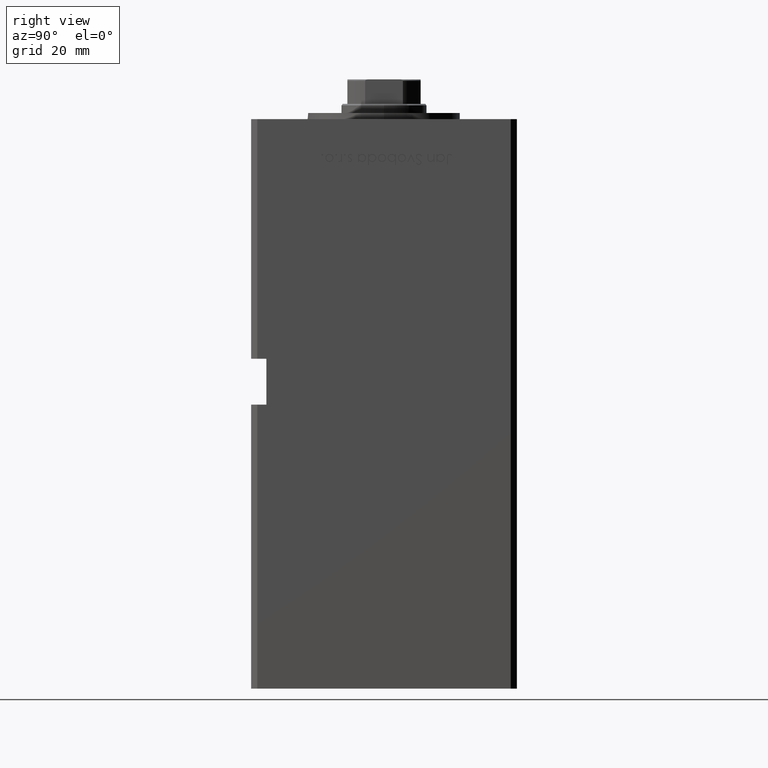
[diagram: clean part render]
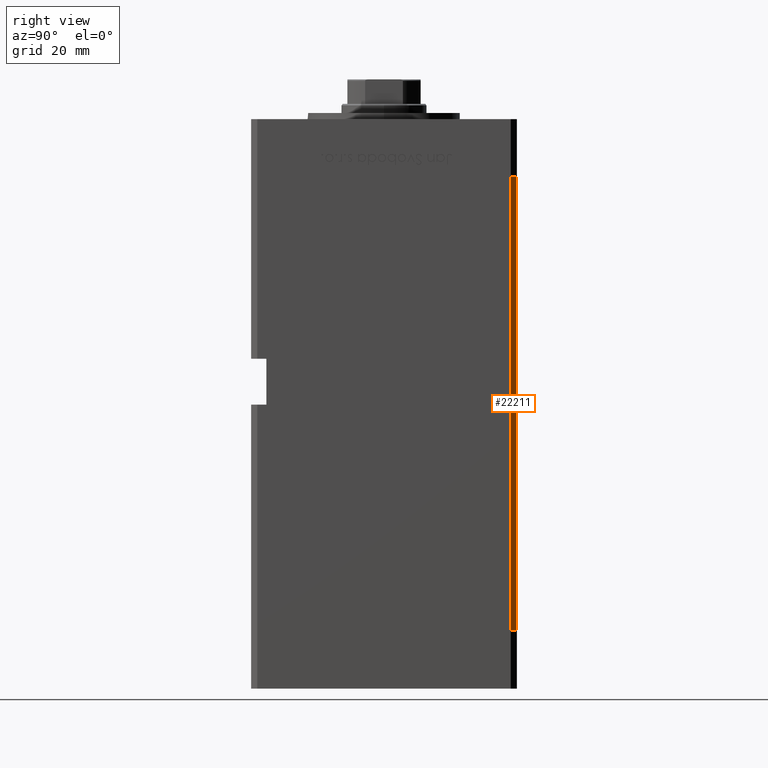
[diagram: same view with one face highlighted and labeled with its STEP entity id]
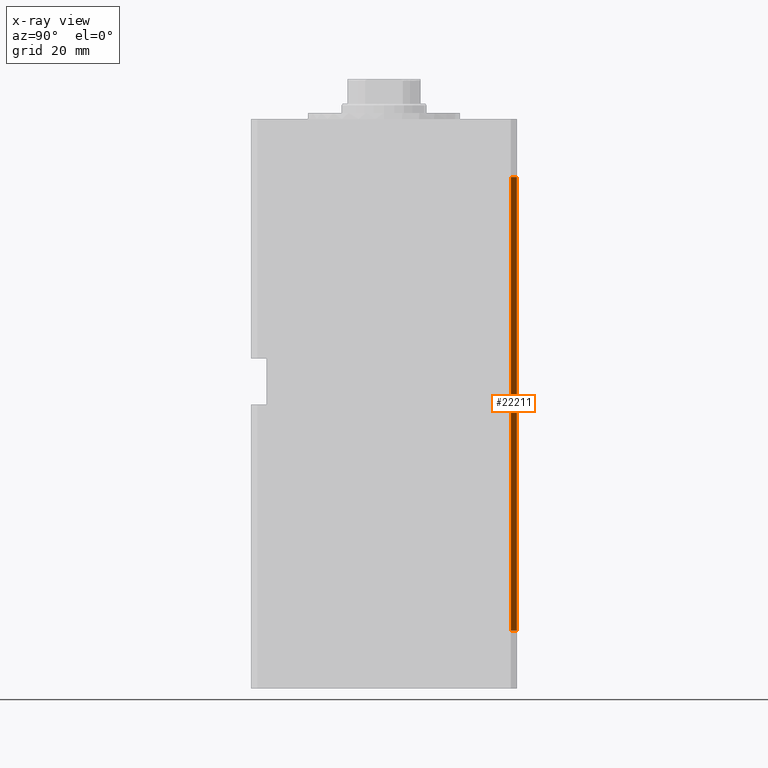
[diagram: x-ray of the same camera — body ghosted, the highlighted face saturated]
A machine part, right view. The second image highlights one B-rep face of the part: STEP entity #22211.
The next image is the same camera in x-ray: the body ghosted, the highlighted face saturated — about 0% of this face is hidden behind the body in this view.
In plain terms, the highlighted planar face has unit normal (0.7071, 0.7071, 0).
Its self-contained STEP definition (entity closure, byte-faithful):
#4422 = VERTEX_POINT ( 'NONE', #47809 ) ;
#6505 = VECTOR ( 'NONE', #35338, 1000.000000000000000 ) ;
#8196 = CARTESIAN_POINT ( 'NONE',  ( 48.00000000000000711, 43.50000000000000000, 0.000000000000000000 ) ) ;
#8711 = LINE ( 'NONE', #49342, #11040 ) ;
#10788 = VERTEX_POINT ( 'NONE', #8196 ) ;
#10850 = LINE ( 'NONE', #39387, #6505 ) ;
#11040 = VECTOR ( 'NONE', #33190, 1000.000000000000000 ) ;
#12323 = VECTOR ( 'NONE', #42246, 1000.000000000000000 ) ;
#12375 = CARTESIAN_POINT ( 'NONE',  ( 50.00000000000001421, 41.49999999999999289, 148.5000000000000000 ) ) ;
#12936 = CARTESIAN_POINT ( 'NONE',  ( 48.00000000000000711, 43.50000000000000000, 148.5000000000000000 ) ) ;
#13344 = EDGE_CURVE ( 'NONE', #27789, #10788, #8711, .T. ) ;
#13370 = DIRECTION ( 'NONE',  ( -0.7071067811865487940, 0.7071067811865463515, 0.000000000000000000 ) ) ;
#16846 = ORIENTED_EDGE ( 'NONE', *, *, #30856, .F. ) ;
#17089 = EDGE_CURVE ( 'NONE', #38066, #4422, #46516, .T. ) ;
#18405 = CARTESIAN_POINT ( 'NONE',  ( 48.00000000000000711, 43.50000000000000000, 148.5000000000000000 ) ) ;
#19643 = FACE_OUTER_BOUND ( 'NONE', #24085, .T. ) ;
#22211 = ADVANCED_FACE ( 'NONE', ( #19643 ), #40636, .T. ) ;
#23145 = EDGE_CURVE ( 'NONE', #27789, #38066, #30117, .T. ) ;
#24085 = EDGE_LOOP ( 'NONE', ( #16846, #27461, #37262, #51243 ) ) ;
#25220 = DIRECTION ( 'NONE',  ( 0.7071067811865463515, 0.7071067811865487940, -0.000000000000000000 ) ) ;
#25792 = CARTESIAN_POINT ( 'NONE',  ( 50.00000000000001421, 41.49999999999999289, 148.5000000000000000 ) ) ;
#27461 = ORIENTED_EDGE ( 'NONE', *, *, #13344, .F. ) ;
#27789 = VERTEX_POINT ( 'NONE', #18405 ) ;
#29511 = CARTESIAN_POINT ( 'NONE',  ( 48.00000000000000711, 43.50000000000000000, 148.5000000000000000 ) ) ;
#30117 = LINE ( 'NONE', #12936, #12323 ) ;
#30856 = EDGE_CURVE ( 'NONE', #10788, #4422, #10850, .T. ) ;
#33190 = DIRECTION ( 'NONE',  ( -0.000000000000000000, -0.000000000000000000, -1.000000000000000000 ) ) ;
#34754 = AXIS2_PLACEMENT_3D ( 'NONE', #29511, #25220, #13370 ) ;
#35338 = DIRECTION ( 'NONE',  ( 0.7071067811865487940, -0.7071067811865463515, 0.000000000000000000 ) ) ;
#36969 = VECTOR ( 'NONE', #50293, 1000.000000000000000 ) ;
#37262 = ORIENTED_EDGE ( 'NONE', *, *, #23145, .T. ) ;
#38066 = VERTEX_POINT ( 'NONE', #12375 ) ;
#39387 = CARTESIAN_POINT ( 'NONE',  ( 48.00000000000000711, 43.50000000000000000, 0.000000000000000000 ) ) ;
#40636 = PLANE ( 'NONE',  #34754 ) ;
#42246 = DIRECTION ( 'NONE',  ( 0.7071067811865487940, -0.7071067811865463515, 0.000000000000000000 ) ) ;
#46516 = LINE ( 'NONE', #25792, #36969 ) ;
#47809 = CARTESIAN_POINT ( 'NONE',  ( 50.00000000000001421, 41.49999999999999289, 0.000000000000000000 ) ) ;
#49342 = CARTESIAN_POINT ( 'NONE',  ( 48.00000000000000711, 43.50000000000000000, 148.5000000000000000 ) ) ;
#50293 = DIRECTION ( 'NONE',  ( -0.000000000000000000, -0.000000000000000000, -1.000000000000000000 ) ) ;
#51243 = ORIENTED_EDGE ( 'NONE', *, *, #17089, .T. ) ;